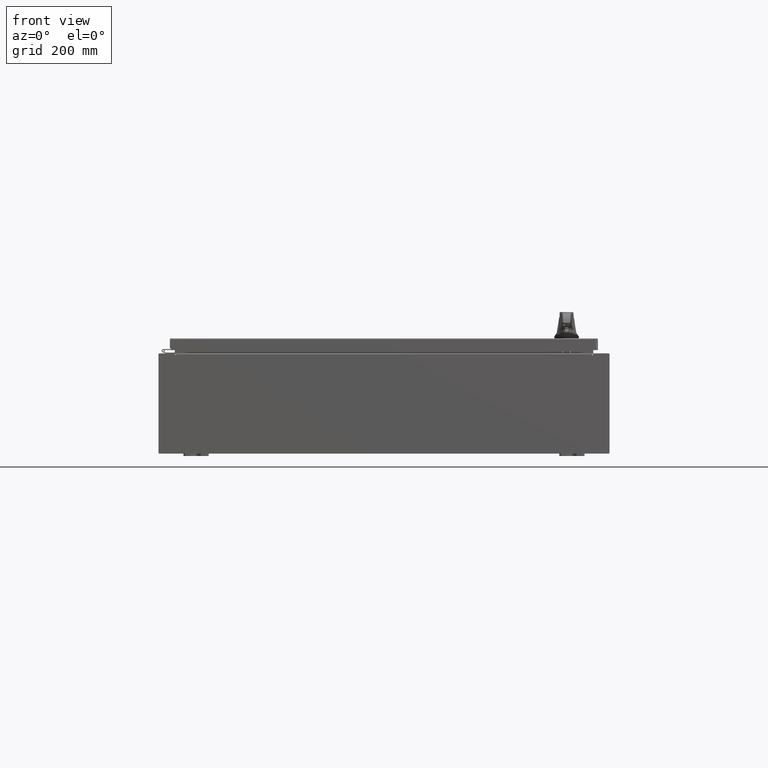
[diagram: clean part render]
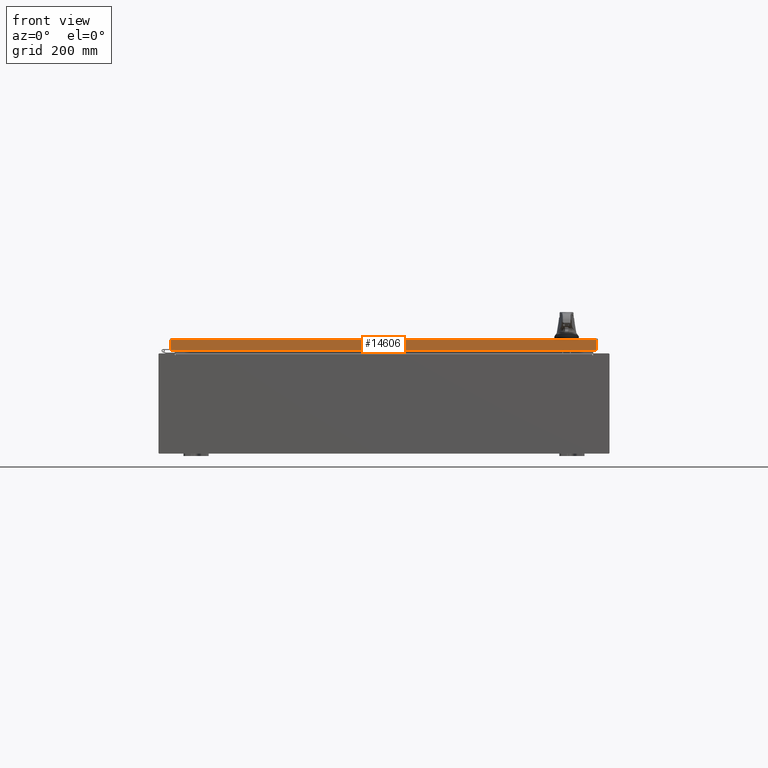
[diagram: same view with one face highlighted and labeled with its STEP entity id]
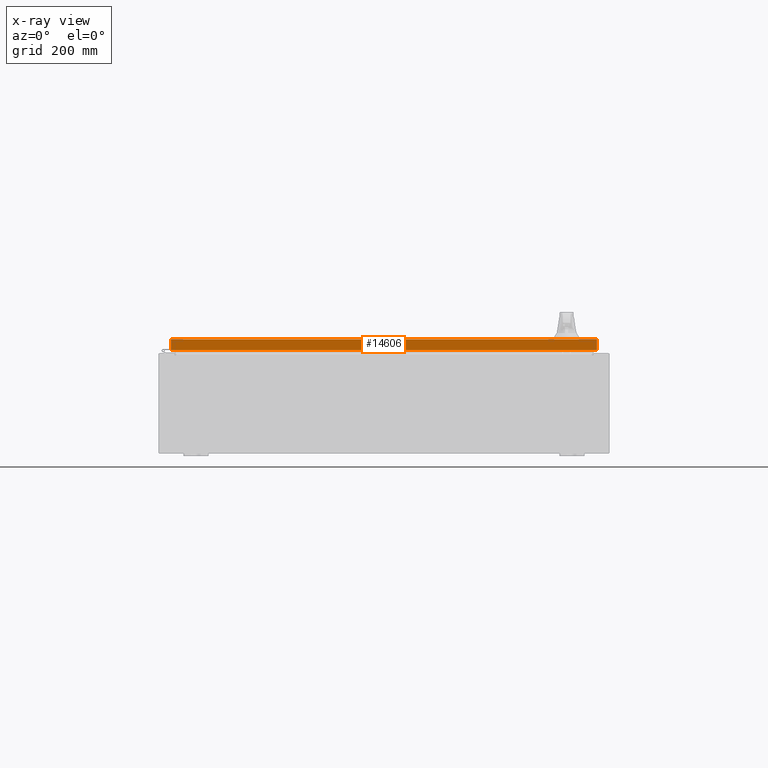
[diagram: x-ray of the same camera — body ghosted, the highlighted face saturated]
A machine part, front view. The second image highlights one B-rep face of the part: STEP entity #14606.
The next image is the same camera in x-ray: the body ghosted, the highlighted face saturated — about 0% of this face is hidden behind the body in this view.
In plain terms, the highlighted planar face has unit normal (-0, 1, -0).
Its self-contained STEP definition (entity closure, byte-faithful):
#978 = FACE_OUTER_BOUND ( 'NONE', #54183, .T. ) ;
#8182 = CARTESIAN_POINT ( 'NONE',  ( 16.98915786437627100, -20.09400000000000100, -0.07469999999999962800 ) ) ;
#8989 = VERTEX_POINT ( 'NONE', #58205 ) ;
#14606 = ADVANCED_FACE ( 'NONE', ( #978 ), #18403, .F. ) ;
#17731 = AXIS2_PLACEMENT_3D ( 'NONE', #48493, #58529, #128843 ) ;
#18403 = PLANE ( 'NONE',  #17731 ) ;
#28557 = DIRECTION ( 'NONE',  ( -1.000000000000000000, 8.758115402030108600E-047, 1.279703943630056800E-016 ) ) ;
#29174 = VECTOR ( 'NONE', #96338, 39.37007874015748100 ) ;
#36852 = EDGE_CURVE ( 'NONE', #8989, #61919, #48668, .T. ) ;
#37886 = DIRECTION ( 'NONE',  ( -0.0000000000000000000, -5.064839849203732200E-015, -1.000000000000000000 ) ) ;
#41698 = VERTEX_POINT ( 'NONE', #66018 ) ;
#41767 = EDGE_CURVE ( 'NONE', #74968, #8989, #55676, .T. ) ;
#42409 = VECTOR ( 'NONE', #37886, 39.37007874015748100 ) ;
#47945 = ORIENTED_EDGE ( 'NONE', *, *, #36852, .F. ) ;
#48493 = CARTESIAN_POINT ( 'NONE',  ( 1.302391711573283500E-029, -20.09400000000000100, 1.020337055859114000E-013 ) ) ;
#48668 = LINE ( 'NONE', #8182, #42409 ) ;
#48725 = DIRECTION ( 'NONE',  ( 0.0000000000000000000, -5.064839849203732200E-015, -1.000000000000000000 ) ) ;
#54183 = EDGE_LOOP ( 'NONE', ( #77802, #97647, #85524, #47945 ) ) ;
#55676 = LINE ( 'NONE', #98087, #29174 ) ;
#56579 = CARTESIAN_POINT ( 'NONE',  ( 16.98915786437627100, -20.09400000000000800, -0.9376999999999997600 ) ) ;
#58205 = CARTESIAN_POINT ( 'NONE',  ( 16.98915786437626700, -20.09400000000000100, -0.08769999999999550400 ) ) ;
#58529 = DIRECTION ( 'NONE',  ( -6.481495528880676900E-031, 1.000000000000000000, -5.064839849203732200E-015 ) ) ;
#61919 = VERTEX_POINT ( 'NONE', #56579 ) ;
#66018 = CARTESIAN_POINT ( 'NONE',  ( -16.98915786437626700, -20.09400000000000800, -0.9376999999999954300 ) ) ;
#73801 = VECTOR ( 'NONE', #48725, 39.37007874015748100 ) ;
#74968 = VERTEX_POINT ( 'NONE', #111937 ) ;
#77802 = ORIENTED_EDGE ( 'NONE', *, *, #41767, .F. ) ;
#85524 = ORIENTED_EDGE ( 'NONE', *, *, #95660, .F. ) ;
#95660 = EDGE_CURVE ( 'NONE', #61919, #41698, #99365, .T. ) ;
#96207 = VECTOR ( 'NONE', #28557, 39.37007874015748100 ) ;
#96338 = DIRECTION ( 'NONE',  ( 1.000000000000000000, 6.481495528880677800E-031, -3.349804276043092000E-045 ) ) ;
#97647 = ORIENTED_EDGE ( 'NONE', *, *, #114374, .T. ) ;
#98087 = CARTESIAN_POINT ( 'NONE',  ( 17.07799999999999900, -20.09400000000000100, -0.08769999999999550400 ) ) ;
#99365 = LINE ( 'NONE', #128540, #96207 ) ;
#111937 = CARTESIAN_POINT ( 'NONE',  ( -16.98915786437626700, -20.09400000000000100, -0.08769999999999550400 ) ) ;
#114374 = EDGE_CURVE ( 'NONE', #74968, #41698, #127231, .T. ) ;
#118944 = CARTESIAN_POINT ( 'NONE',  ( -16.98915786437626700, -20.09400000000000100, 1.020337055859114000E-013 ) ) ;
#127231 = LINE ( 'NONE', #118944, #73801 ) ;
#128540 = CARTESIAN_POINT ( 'NONE',  ( 17.07799999999999900, -20.09400000000000800, -0.9376999999999997600 ) ) ;
#128843 = DIRECTION ( 'NONE',  ( 0.0000000000000000000, 5.064839849203732200E-015, 1.000000000000000000 ) ) ;